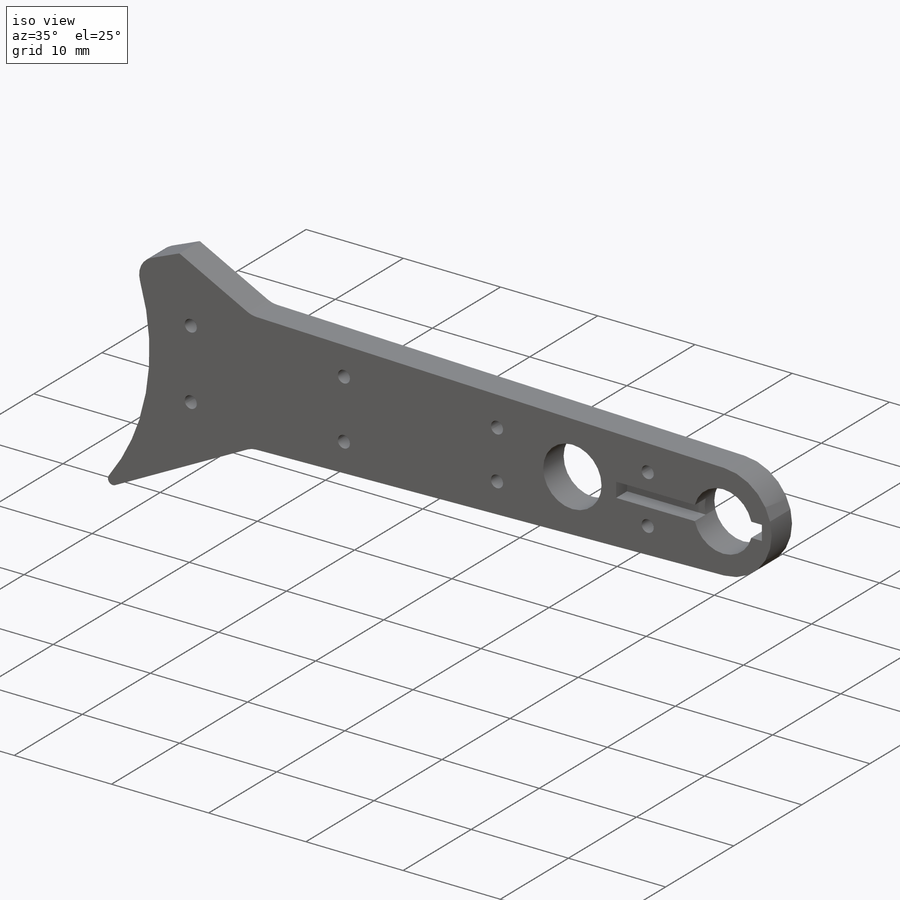
[diagram: iso view]
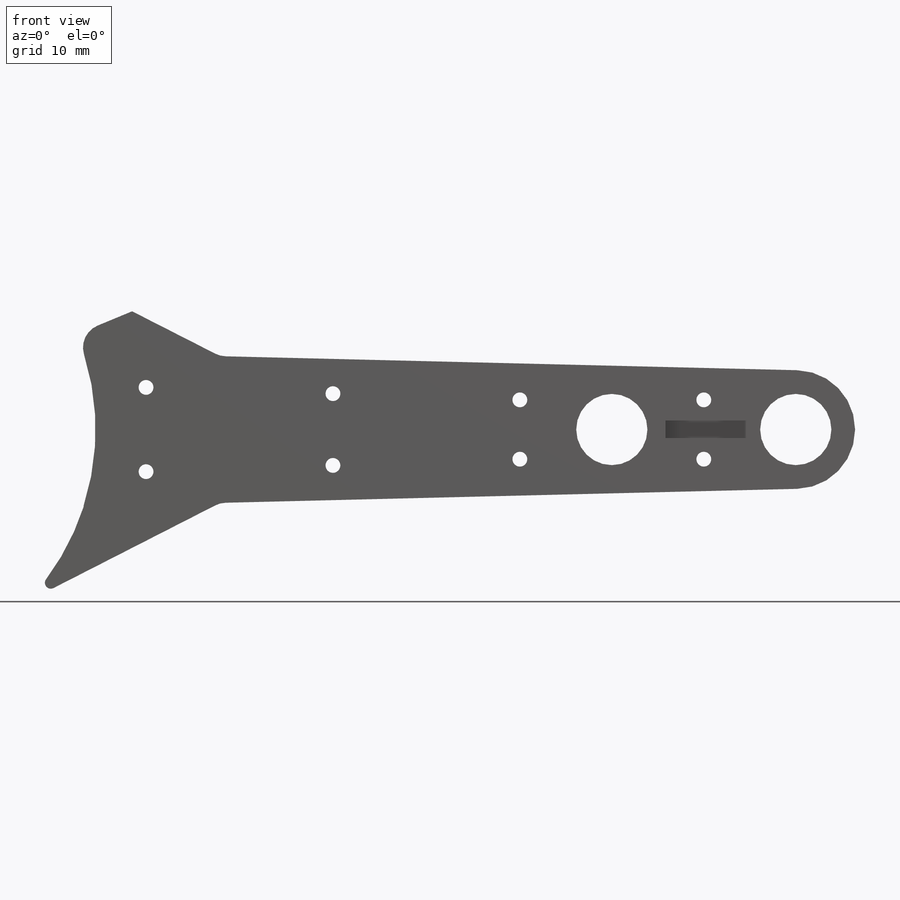
[diagram: front view]
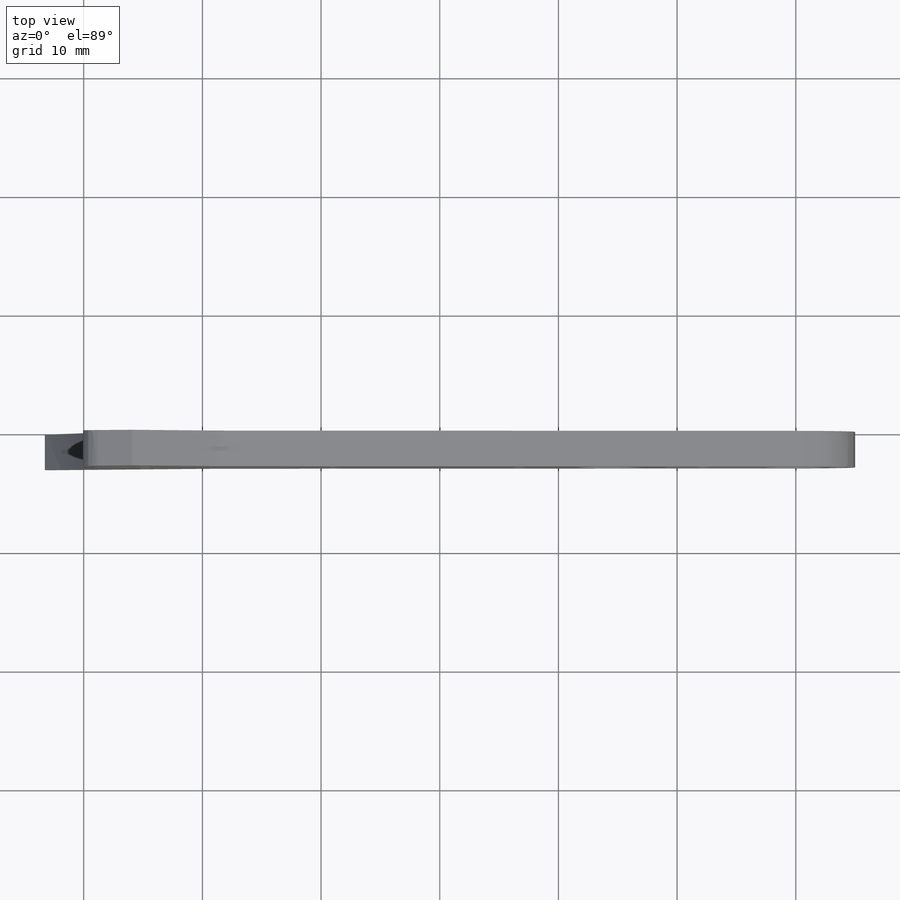
[diagram: top view]
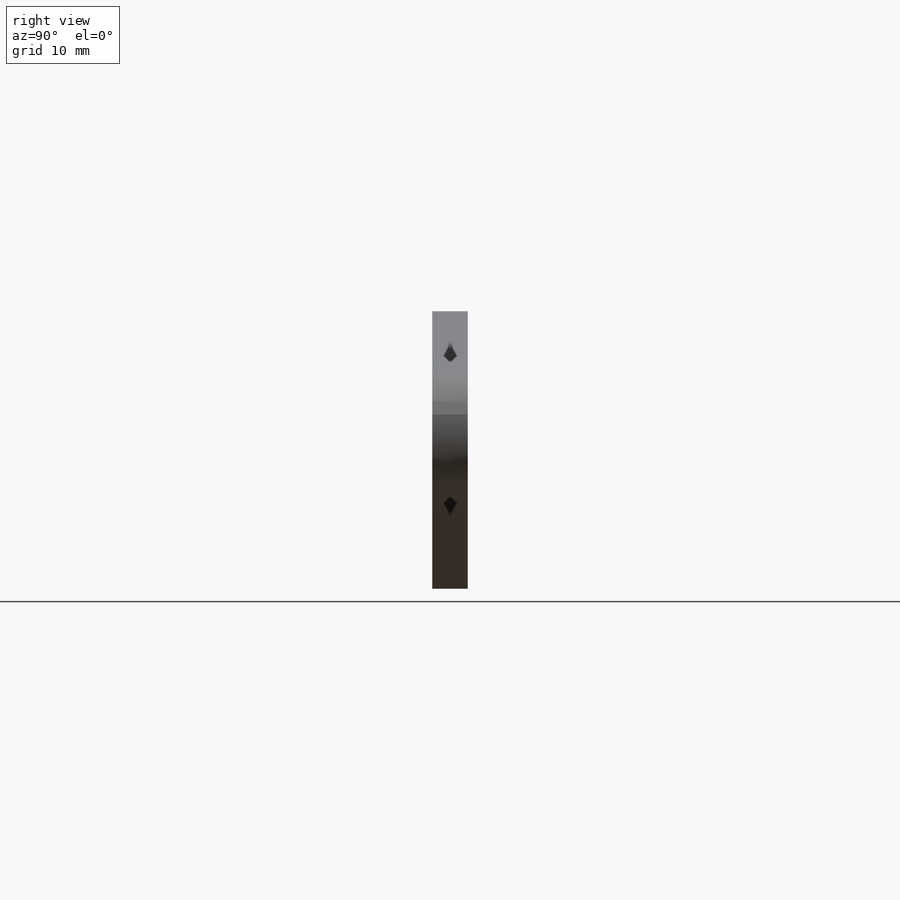
[diagram: right view]
SOLIDWORKS PART (.sldprt)
format: sldprt  version: not decoded by parser v0  size: 507,392 bytes
history: native  units: mm
features: sketch x14, fillet x5, cut_extrude x5, hole x3, extrude x2, material x1, pattern_circular x1, chamfer x1 (+12 scaffold rows collapsed)
feature tree (44):
  scaffold x12  (default folders/planes/origin — collapsed)
  material  "POM copolymère d'acétal"
  sketch  "Sketch1"  dims[c1.D1=39.0mm c1.D4=6.0mm c1.D3=28.0mm c1.D5=6.0mm c1.D7=5.0mm c1.D8=33.0mm c2.D1=33.0mm c2.D3=33.0mm c2.D2=15.5mm c3.D3=55.0mm c3.D5=3.0mm c3.D6=13.0mm c4.D5=80.0mm c4.D1=3.0mm c4.D3=3.0mm]
  extrude  "Boss-Extrude1"  Depth=3mm
  hole  "M2 Clearance Hole1"  Diameter=2.4mm Depth=11.5mm
  sketch  "Sketch5"  dims[D1=33.0mm]
  sketch  "Sketch4"  dims[hole-wizard template sketch: 50 standard entries collapsed; hole parameters above]
  pattern_circular  "CirPattern1"  Count=12 Angle=360deg
  hole  "M2 Clearance Hole2"  Diameter=2.4mm Depth=11.5mm
  sketch  "Sketch7"  dims[c1.D1=45.0mm c1.D2=5.0mm c1.D3=5.0mm c2.D1=7.75mm]
  sketch  "Sketch6"  dims[hole-wizard template sketch: 50 standard entries collapsed; hole parameters above]
  chamfer  "Chamfer2"  Distance=8mm Angle=44.62deg
  fillet  "Fillet4"  Radius=3mm
  sketch  "Sketch8"  dims[c1.D4=2.0mm c1.D1=20.0mm c1.D2=28.0mm c1.D3=5.0mm c2.D2=53.0mm]
  cut_extrude  "Cut-Extrude2"  Depth=2mm
  sketch  "Sketch9"
  hole  "Trou taraudé M1.61"  Diameter=1.25mm Depth=3mm
  sketch  "Sketch11"
  sketch  "Sketch10"  dims[hole-wizard template sketch: 60 standard entries collapsed; hole parameters kept: c18.Profondeur du trou pour taraudage jusqu'au prochain=3.0mm]
  sketch  "Esquisse1"  dims[D1=42.0mm]
  cut_extrude  "Enlèv. mat.-Extru.1"  [1 undecoded]
  sketch  "Esquisse2"  dims[c1.D1=~55.403466mm c1.D4=1.25mm c1.D5=1.25mm c2.D1=4.0mm c2.D2=25.5mm c3.D2=8.0deg c3.D3=~24.999846mm c4.D3=8.0deg]
  cut_extrude  "Enlèv. mat.-Extru.2"  [1 undecoded]
  sketch  "Esquisse4"  dims[D1=0.75mm D2=1.5mm D3=4.0mm D4=15.0mm]
  cut_extrude  "Enlèv. mat.-Extru.3"  Depth=1.6mm
  fillet  "Congé1"  Radius=3mm
  sketch  "Esquisse5"  dims[D1=1.25mm D2=1.25mm]
  cut_extrude  "Enlèv. mat.-Extru.4"  Depth=10mm
  sketch  "Esquisse6"  dims[c1.D1=15.5mm c2.D1=27.0deg c2.D2=33.0mm c2.D3=~5.595829mm c3.D3=22.5deg c3.D4=40.5mm]
  extrude  "Boss.-Extru.3"  [1 undecoded]
  fillet  "Congé2"  Radius=2mm
  fillet  "Congé3"  Radius=2mm
  fillet  "Congé4"  Radius=0.5mm
decode coverage: 26 of 31 modeling features carry decoded parameters
note: ~ marks probable driven/reference dimensions
note: 3 parameter values undecoded
summary: no parameter record found for 3 features
note: suppression state not decoded; provenance and decode notes live in map.json
